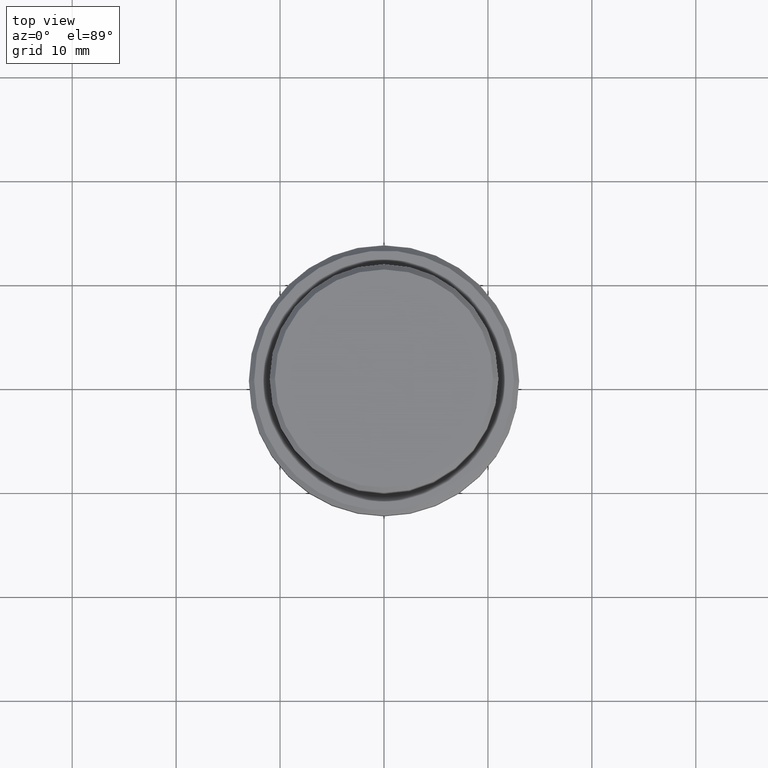
[diagram: clean part render]
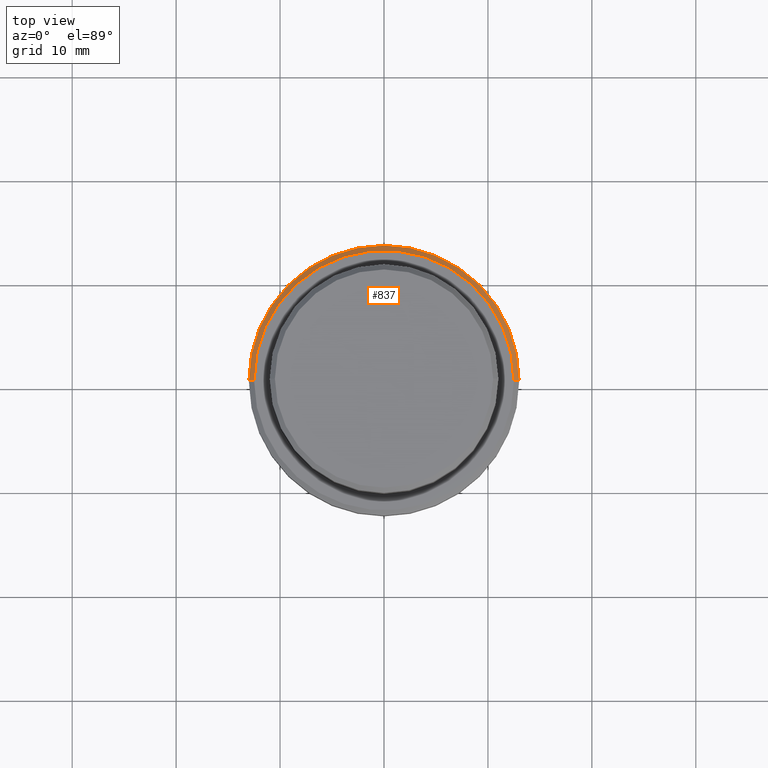
[diagram: same view with one face highlighted and labeled with its STEP entity id]
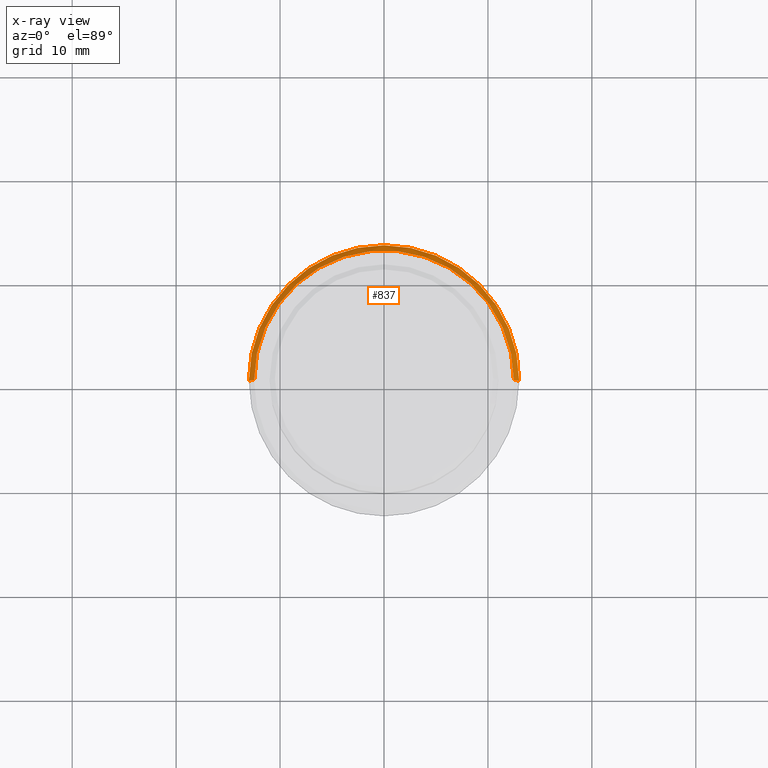
[diagram: x-ray of the same camera — body ghosted, the highlighted face saturated]
A machine part, top view. The second image highlights one B-rep face of the part: STEP entity #837.
The next image is the same camera in x-ray: the body ghosted, the highlighted face saturated — about 0% of this face is hidden behind the body in this view.
In plain terms, the highlighted conical surface has half-angle 45 deg.
Its self-contained STEP definition (entity closure, byte-faithful):
#55 = DIRECTION ( 'NONE',  ( 0.000000000000000000, 0.000000000000000000, -1.000000000000000000 ) ) ;
#152 = EDGE_CURVE ( 'NONE', #1049, #1100, #458, .T. ) ;
#189 = ORIENTED_EDGE ( 'NONE', *, *, #977, .T. ) ;
#193 = DIRECTION ( 'NONE',  ( -0.000000000000000000, -0.000000000000000000, 1.000000000000000000 ) ) ;
#218 = ORIENTED_EDGE ( 'NONE', *, *, #391, .F. ) ;
#282 = CONICAL_SURFACE ( 'NONE', #1003, 12.50000000000000355, 0.7853981633974430610 ) ;
#302 = CARTESIAN_POINT ( 'NONE',  ( -12.50000000000000355, 0.000000000000000000, -10.00000000000000000 ) ) ;
#312 = CARTESIAN_POINT ( 'NONE',  ( 0.000000000000000000, 0.000000000000000000, -10.00000000000000000 ) ) ;
#317 = DIRECTION ( 'NONE',  ( 0.7071067811865439090, 8.659560562354888485E-17, -0.7071067811865512365 ) ) ;
#349 = VERTEX_POINT ( 'NONE', #766 ) ;
#391 = EDGE_CURVE ( 'NONE', #1100, #647, #454, .T. ) ;
#395 = ORIENTED_EDGE ( 'NONE', *, *, #152, .F. ) ;
#454 = CIRCLE ( 'NONE', #1072, 13.00000000000000000 ) ;
#458 = LINE ( 'NONE', #1246, #1380 ) ;
#466 = ORIENTED_EDGE ( 'NONE', *, *, #511, .F. ) ;
#511 = EDGE_CURVE ( 'NONE', #349, #1049, #1074, .T. ) ;
#514 = CARTESIAN_POINT ( 'NONE',  ( 0.000000000000000000, 0.000000000000000000, -10.50000000000000000 ) ) ;
#535 = FACE_OUTER_BOUND ( 'NONE', #848, .T. ) ;
#641 = DIRECTION ( 'NONE',  ( -1.000000000000000000, 0.000000000000000000, 0.000000000000000000 ) ) ;
#647 = VERTEX_POINT ( 'NONE', #1190 ) ;
#766 = CARTESIAN_POINT ( 'NONE',  ( 12.50000000000000355, 1.561424668912875506E-15, -10.00000000000000000 ) ) ;
#837 = ADVANCED_FACE ( 'NONE', ( #535 ), #282, .T. ) ;
#844 = CARTESIAN_POINT ( 'NONE',  ( 0.000000000000000000, 0.000000000000000000, -10.00000000000000000 ) ) ;
#848 = EDGE_LOOP ( 'NONE', ( #466, #189, #218, #395 ) ) ;
#868 = LINE ( 'NONE', #1005, #1299 ) ;
#928 = DIRECTION ( 'NONE',  ( 1.000000000000000000, 0.000000000000000000, 0.000000000000000000 ) ) ;
#937 = AXIS2_PLACEMENT_3D ( 'NONE', #312, #193, #1043 ) ;
#977 = EDGE_CURVE ( 'NONE', #349, #647, #868, .T. ) ;
#1003 = AXIS2_PLACEMENT_3D ( 'NONE', #844, #1041, #641 ) ;
#1005 = CARTESIAN_POINT ( 'NONE',  ( 12.50000000000000355, 1.530808498934191916E-15, -10.00000000000000000 ) ) ;
#1041 = DIRECTION ( 'NONE',  ( 0.000000000000000000, 0.000000000000000000, -1.000000000000000000 ) ) ;
#1043 = DIRECTION ( 'NONE',  ( 1.000000000000000000, 0.000000000000000000, 0.000000000000000000 ) ) ;
#1049 = VERTEX_POINT ( 'NONE', #302 ) ;
#1072 = AXIS2_PLACEMENT_3D ( 'NONE', #514, #55, #928 ) ;
#1074 = CIRCLE ( 'NONE', #937, 12.50000000000000355 ) ;
#1100 = VERTEX_POINT ( 'NONE', #1413 ) ;
#1190 = CARTESIAN_POINT ( 'NONE',  ( 13.00000000000000000, 0.000000000000000000, -10.50000000000000000 ) ) ;
#1246 = CARTESIAN_POINT ( 'NONE',  ( -12.50000000000000355, 0.000000000000000000, -10.00000000000000000 ) ) ;
#1299 = VECTOR ( 'NONE', #317, 999.9999999999998863 ) ;
#1380 = VECTOR ( 'NONE', #1391, 999.9999999999998863 ) ;
#1391 = DIRECTION ( 'NONE',  ( -0.7071067811865439090, 0.000000000000000000, -0.7071067811865512365 ) ) ;
#1413 = CARTESIAN_POINT ( 'NONE',  ( -13.00000000000000000, 1.592040838891559095E-15, -10.50000000000000000 ) ) ;